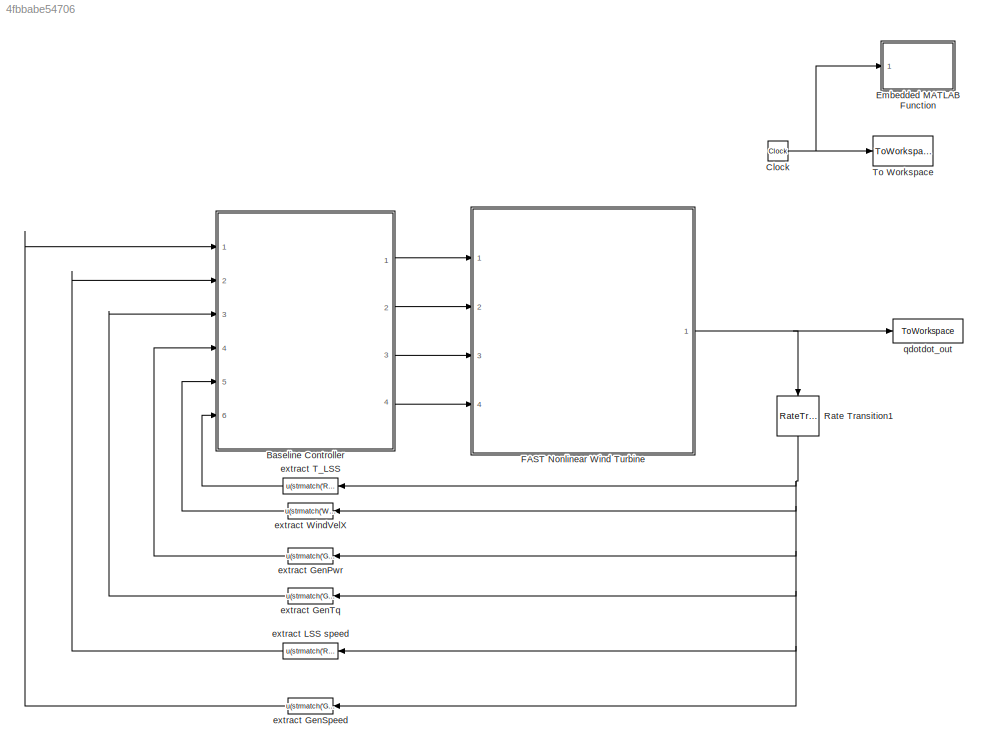
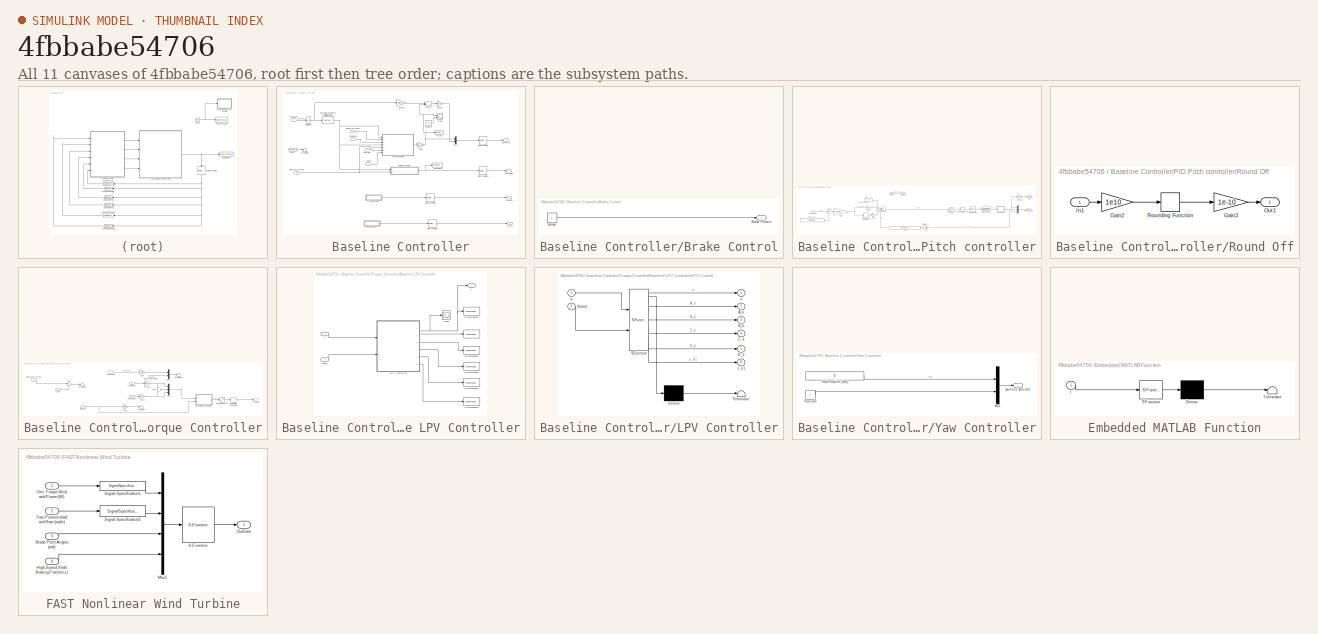
[diagram: thumbnail index - all 11 canvases of the model, root first then tree order]
MODEL slx_4fbbabe54706
KIND model
CONFIG AbsTol = auto
CONFIG EnableMultiTasking = on
CONFIG FixedStep = .0125
CONFIG MaxStep = auto
CONFIG MinStep = auto
CONFIG RelTol = 1e-3
CONFIG SampleTimeConstraint = Unconstrained
CONFIG Solver = ode4
CONFIG SolverName = ode4
CONFIG StartTime = 0.0
CONFIG StopTime = TMax
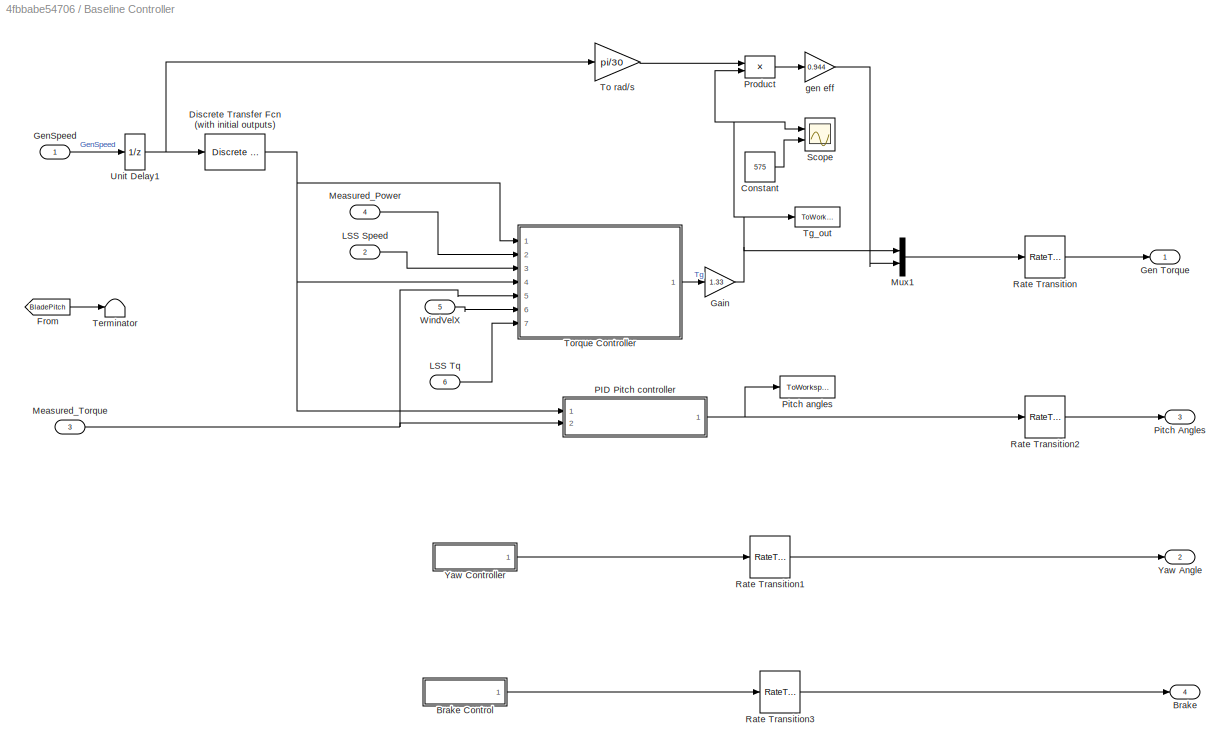
BLOCK [SubSystem] Baseline Controller
  Ports = [6, 4]
  RequestExecContextInheritance = off
BLOCK [Outport] Baseline Controller/Brake
  IconDisplay = Port number
  Port = 4
BLOCK [SubSystem] Baseline Controller/Brake Control
  Ports = [0, 1]
  RequestExecContextInheritance = off
BLOCK [Constant] Baseline Controller/Brake Control/Brake
  SampleTime = -1
  Value = 0
BLOCK [Outport] Baseline Controller/Brake Control/Brake Percent
  IconDisplay = Port number
BLOCK [Constant] Baseline Controller/Constant
  Value = 575
BLOCK [Reference] Baseline Controller/Discrete Transfer Fcn (with initial outputs)  REF=simulink_extras/Additional
Discrete/Discrete
Transfer Fcn
(with initial outputs)
  Ports = [1, 1]
  SourceBlock = simulink_extras/Additional\nDiscrete/Discrete\nTransfer Fcn\n(with initial outputs)
  SourceProductBaseCode = SL
  SourceProductName = Simulink
  SourceType = Discrete Transfer Function with Initial Outputs
BLOCK [From] Baseline Controller/From
  GotoTag = BladePitch
  TagVisibility = global
BLOCK [Gain] Baseline Controller/Gain
  Gain = 1.33
  OutDataTypeStr = Inherit: Inherit via internal rule
  ParamDataTypeStr = Inherit: Inherit via internal rule
  SaturateOnIntegerOverflow = off
BLOCK [Outport] Baseline Controller/Gen Torque
  IconDisplay = Port number
BLOCK [Inport] Baseline Controller/GenSpeed
  IconDisplay = Port number
BLOCK [Inport] Baseline Controller/LSS Speed
  IconDisplay = Port number
  Port = 2
BLOCK [Inport] Baseline Controller/LSS Tq
  IconDisplay = Port number
  Port = 6
BLOCK [Inport] Baseline Controller/Measured_Power
  IconDisplay = Port number
  Port = 4
BLOCK [Inport] Baseline Controller/Measured_Torque
  IconDisplay = Port number
  Port = 3
BLOCK [Mux] Baseline Controller/Mux1
  DisplayOption = bar
  Inputs = 2
  Ports = [2, 1]
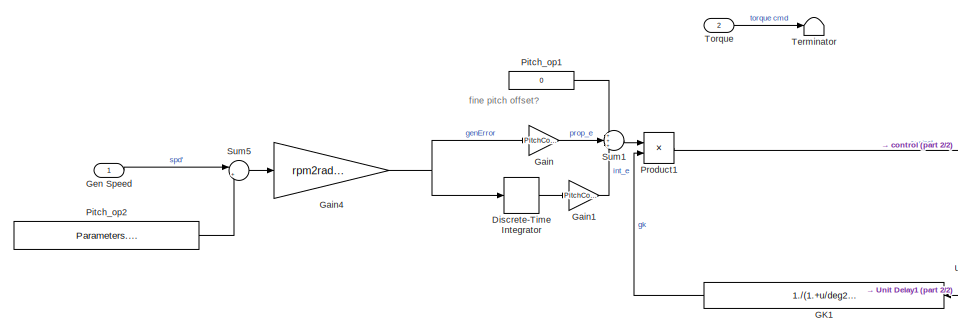
[diagram: Baseline Controller/PID Pitch controller - part 1/2, left side, full height]
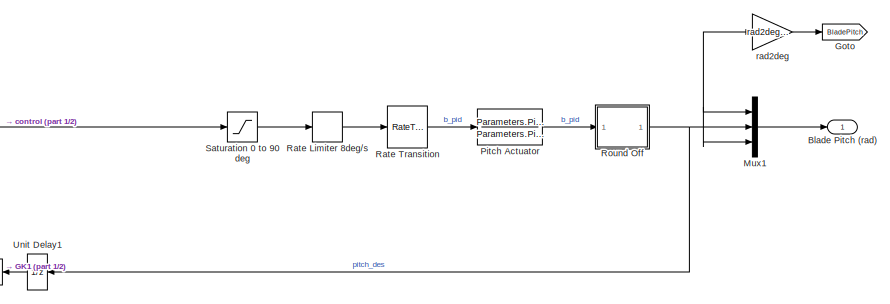
[diagram: Baseline Controller/PID Pitch controller - part 2/2, right side, full height]
BLOCK [SubSystem] Baseline Controller/PID Pitch controller
  MinAlgLoopOccurrences = on
  Ports = [2, 1]
  RequestExecContextInheritance = off
BLOCK [Outport] Baseline Controller/PID Pitch controller/Blade Pitch (rad)
  IconDisplay = Port number
BLOCK [DiscreteIntegrator] Baseline Controller/PID Pitch controller/Discrete-Time Integrator
  ICPrevOutput = DiscIntNeverNeededParam
  ICPrevScaledInput = DiscIntNeverNeededParam
  InitialCondition = deg2rad(Parameters.Turbine.fine_pitch)/(PitchControlParams.Ki_0)/(1./(1.+deg2rad(Parameters.Turbine.fine_pitch)/PitchControlParams.theta_k))
  IntegratorMethod = Integration: Backward Euler
  LimitOutput = on
  LowerSaturationLimit = deg2rad(Parameters.Turbine.fine_pitch)/(PitchControlParams.Ki_0)/(1./(1.+deg2rad(Parameters.Turbine.fine_pitch)/PitchControlParams.theta_k))
  Ports = [1, 1]
  SampleTime = Control.DT
  UpperSaturationLimit = 5*1.570796/(PitchControlParams.Ki_0)/(1./(1.+1.570796/PitchControlParams.theta_k))
  gainval = 1
BLOCK [Fcn] Baseline Controller/PID Pitch controller/GK1
  Expr = 1./(1.+u/deg2rad(PitchControlParams.theta_k))
BLOCK [Gain] Baseline Controller/PID Pitch controller/Gain
  Gain = PitchControlParams.Kp_0
  OutDataTypeStr = Inherit: Inherit via internal rule
  ParamDataTypeStr = Inherit: Inherit via internal rule
  SaturateOnIntegerOverflow = off
BLOCK [Gain] Baseline Controller/PID Pitch controller/Gain1
  Gain = PitchControlParams.Ki_0
  OutDataTypeStr = Inherit: Inherit via internal rule
  ParamDataTypeStr = Inherit: Inherit via internal rule
  SaturateOnIntegerOverflow = off
BLOCK [Gain] Baseline Controller/PID Pitch controller/Gain4
  Gain = rpm2radps(1)
  OutDataTypeStr = Inherit: Inherit via internal rule
  ParamDataTypeStr = Inherit: Inherit via internal rule
  SaturateOnIntegerOverflow = off
BLOCK [Inport] Baseline Controller/PID Pitch controller/Gen Speed
  IconDisplay = Port number
BLOCK [Goto] Baseline Controller/PID Pitch controller/Goto
  GotoTag = BladePitch
  TagVisibility = global
BLOCK [Mux] Baseline Controller/PID Pitch controller/Mux1
  DisplayOption = bar
  Inputs = 3
  Ports = [3, 1]
BLOCK [TransferFcn] Baseline Controller/PID Pitch controller/Pitch Actuator
  Denominator = Parameters.PitchActuator.TF_den
  Numerator = Parameters.PitchActuator.TF_num
BLOCK [Constant] Baseline Controller/PID Pitch controller/Pitch_op1
  SampleTime = Control.DT
  Value = 0
BLOCK [Constant] Baseline Controller/PID Pitch controller/Pitch_op2
  SampleTime = Control.DT
  Value = Parameters.Turbine.wg_rated
BLOCK [Product] Baseline Controller/PID Pitch controller/Product1
  InputSameDT = off
  OutDataTypeStr = Inherit: Inherit via internal rule
  Ports = [2, 1]
  SaturateOnIntegerOverflow = off
BLOCK [RateLimiter] Baseline Controller/PID Pitch controller/Rate Limiter 8deg//s
  FallingSlewLimit = -8*pi/180
  InitialCondition = deg2rad(0)
  RisingSlewLimit = 8*pi/180
  SampleTimeMode = inherited
BLOCK [RateTransition] Baseline Controller/PID Pitch controller/Rate Transition
  Commented = through
BLOCK [SubSystem] Baseline Controller/PID Pitch controller/Round Off
  Ports = [1, 1]
  RequestExecContextInheritance = off
BLOCK [Gain] Baseline Controller/PID Pitch controller/Round Off/Gain2
  Gain = 1e10
  OutDataTypeStr = Inherit: Inherit via internal rule
  ParamDataTypeStr = Inherit: Inherit via internal rule
  SaturateOnIntegerOverflow = off
BLOCK [Gain] Baseline Controller/PID Pitch controller/Round Off/Gain3
  Gain = 1e-10
  OutDataTypeStr = Inherit: Inherit via internal rule
  ParamDataTypeStr = Inherit: Inherit via internal rule
  SaturateOnIntegerOverflow = off
BLOCK [Inport] Baseline Controller/PID Pitch controller/Round Off/In1
  IconDisplay = Port number
BLOCK [Outport] Baseline Controller/PID Pitch controller/Round Off/Out1
  IconDisplay = Port number
BLOCK [Rounding] Baseline Controller/PID Pitch controller/Round Off/Rounding Function
  Operator = round
BLOCK [Saturate] Baseline Controller/PID Pitch controller/Saturation 0 to 90 deg
  InputPortMap = u0
  LowerLimit = deg2rad(Parameters.Turbine.fine_pitch)
  Ports = [1, 1]
  UpperLimit = 90*pi/180
BLOCK [Sum] Baseline Controller/PID Pitch controller/Sum1
  IconShape = round
  InputSameDT = off
  Inputs = +++
  OutDataTypeStr = Inherit: Inherit via internal rule
  Ports = [3, 1]
  SaturateOnIntegerOverflow = off
BLOCK [Sum] Baseline Controller/PID Pitch controller/Sum5
  IconShape = round
  Inputs = |+-
  Ports = [2, 1]
BLOCK [Terminator] Baseline Controller/PID Pitch controller/Terminator
BLOCK [Inport] Baseline Controller/PID Pitch controller/Torque
  IconDisplay = Port number
  Port = 2
BLOCK [UnitDelay] Baseline Controller/PID Pitch controller/Unit Delay1
  InitialCondition = Parameters.Turbine.IC.Wg
  SampleTime = Control.DT
BLOCK [Gain] Baseline Controller/PID Pitch controller/rad2deg
  Gain = rad2deg(1)
  OutDataTypeStr = Inherit: Inherit via internal rule
  ParamDataTypeStr = Inherit: Inherit via internal rule
  SaturateOnIntegerOverflow = off
BLOCK [Outport] Baseline Controller/Pitch Angles
  IconDisplay = Port number
  Port = 3
BLOCK [ToWorkspace] Baseline Controller/Pitch angles 
  MaxDataPoints = inf
  Ports = [1]
  SampleTime = FA.DT
  VariableName = theta_out
BLOCK [Product] Baseline Controller/Product
  InputSameDT = off
  OutDataTypeStr = Inherit: Inherit via internal rule
  Ports = [2, 1]
  SaturateOnIntegerOverflow = off
BLOCK [RateTransition] Baseline Controller/Rate Transition
  InitialCondition = Parameters.Turbine.IC.Tg
BLOCK [RateTransition] Baseline Controller/Rate Transition1
BLOCK [RateTransition] Baseline Controller/Rate Transition2
  InitialCondition = Parameters.Turbine.IC.Bp
BLOCK [RateTransition] Baseline Controller/Rate Transition3
BLOCK [Scope] Baseline Controller/Scope
  Floating = off
  NumInputPorts = 2
  Ports = [2]
  ScopeSpecificationString = Simulink.scopes.TimeScopeBlockCfg('CurrentConfiguration', extmgr.ConfigurationSet(extmgr.Configuration('Core','General UI',true),extmgr.Configuration('Core','Source UI',true),extmgr.Configuration('Sources','WiredSimulink',true,'DataLoggingVariableName','ScopeData1'),extmgr.Configuration('Visuals','Time Domain',true,'SerializedDisplays',{struct('MinYLimReal','-71.875','MaxYLimReal','646.875','YLabe...<+1411ch>
BLOCK [Terminator] Baseline Controller/Terminator
BLOCK [ToWorkspace] Baseline Controller/Tg_out
  MaxDataPoints = Inf
  Ports = [1]
  VariableName = Out_Tg
BLOCK [Gain] Baseline Controller/To rad//s
  Gain = pi/30
  OutDataTypeStr = Inherit: Inherit via internal rule
  ParamDataTypeStr = Inherit: Inherit via internal rule
  SaturateOnIntegerOverflow = off
BLOCK [SubSystem] Baseline Controller/Torque Controller
  Ports = [7, 1]
  RequestExecContextInheritance = off
BLOCK [SubSystem] Baseline Controller/Torque Controller/Baseline LPV Controller
  MinAlgLoopOccurrences = on
  Ports = [2, 1]
  RequestExecContextInheritance = off
  TreatAsAtomicUnit = on
  TreatAsGroupedWhenPropagatingVariantConditions = off
BLOCK [ToWorkspace] Baseline Controller/Torque Controller/Baseline LPV Controller/ 
  Decimation = 3
  FixptAsFi = on
  MaxDataPoints = inf
  Ports = [1]
  SampleTime = -1
  Save2DSignal = 3-D array (concatenate along third dimension)
  SaveFormat = Structure With Time
  VariableName = A_k
BLOCK [SubSystem] Baseline Controller/Torque Controller/Baseline LPV Controller/LPV Controller
  ErrorFcn = Stateflow.Translate.translate
  MinAlgLoopOccurrences = on
  PermitHierarchicalResolution = ExplicitOnly
  Ports = [2, 6]
  RequestExecContextInheritance = off
  SFBlockType = MATLAB Function
  TreatAsAtomicUnit = on
  TreatAsGroupedWhenPropagatingVariantConditions = off
BLOCK [Demux] Baseline Controller/Torque Controller/Baseline LPV Controller/LPV Controller/ Demux 
  Outputs = 1
  Ports = [1, 1]
BLOCK [S-Function] Baseline Controller/Torque Controller/Baseline LPV Controller/LPV Controller/ SFunction 
  EnableBusSupport = on
  FunctionName = sf_sfun
  PortCounts = [2 7]
  Ports = [2, 7]
  SFcnIsStateOwnerBlock = off
  SFunctionDeploymentMode = off
  Tag = Stateflow S-Function LPV_TorqueTracker_DT_CP_LMI_II_v3 1
BLOCK [Terminator] Baseline Controller/Torque Controller/Baseline LPV Controller/LPV Controller/ Terminator 
BLOCK [Outport] Baseline Controller/Torque Controller/Baseline LPV Controller/LPV Controller/A_k
  IconDisplay = Port number
  Port = 2
BLOCK [Outport] Baseline Controller/Torque Controller/Baseline LPV Controller/LPV Controller/B_k
  IconDisplay = Port number
  Port = 3
BLOCK [Outport] Baseline Controller/Torque Controller/Baseline LPV Controller/LPV Controller/C_k
  IconDisplay = Port number
  Port = 4
BLOCK [Outport] Baseline Controller/Torque Controller/Baseline LPV Controller/LPV Controller/D_k
  IconDisplay = Port number
  Port = 5
BLOCK [Inport] Baseline Controller/Torque Controller/Baseline LPV Controller/LPV Controller/theta1
  IconDisplay = Port number
  Port = 2
BLOCK [Outport] Baseline Controller/Torque Controller/Baseline LPV Controller/LPV Controller/u
  IconDisplay = Port number
BLOCK [Outport] Baseline Controller/Torque Controller/Baseline LPV Controller/LPV Controller/x_k1
  IconDisplay = Port number
  Port = 6
BLOCK [Inport] Baseline Controller/Torque Controller/Baseline LPV Controller/LPV Controller/y
  IconDisplay = Port number
BLOCK [Scope] Baseline Controller/Torque Controller/Baseline LPV Controller/Scope
  Floating = off
  NumInputPorts = 1
  Ports = [1]
  ScopeSpecificationString = Simulink.scopes.TimeScopeBlockCfg('CurrentConfiguration', extmgr.ConfigurationSet(extmgr.Configuration('Core','General UI',true),extmgr.Configuration('Core','Source UI',true),extmgr.Configuration('Sources','WiredSimulink',true,'DataLoggingVariableName','ScopeData1'),extmgr.Configuration('Visuals','Time Domain',true,'SerializedDisplays',{struct('MinYLimReal','-17.89709','MaxYLimReal','103.23101','Y...<+1424ch>
BLOCK [ToWorkspace] Baseline Controller/Torque Controller/Baseline LPV Controller/To Workspace1
  Decimation = 3
  FixptAsFi = on
  MaxDataPoints = inf
  Ports = [1]
  SampleTime = -1
  Save2DSignal = 3-D array (concatenate along third dimension)
  SaveFormat = Structure With Time
  VariableName = B_k
BLOCK [ToWorkspace] Baseline Controller/Torque Controller/Baseline LPV Controller/To Workspace2
  Decimation = 3
  FixptAsFi = on
  MaxDataPoints = inf
  Ports = [1]
  SampleTime = -1
  Save2DSignal = 3-D array (concatenate along third dimension)
  SaveFormat = Structure With Time
  VariableName = C_k
BLOCK [ToWorkspace] Baseline Controller/Torque Controller/Baseline LPV Controller/To Workspace3
  Decimation = 3
  FixptAsFi = on
  MaxDataPoints = inf
  Ports = [1]
  SampleTime = -1
  Save2DSignal = 3-D array (concatenate along third dimension)
  SaveFormat = Structure With Time
  VariableName = D_k
BLOCK [ToWorkspace] Baseline Controller/Torque Controller/Baseline LPV Controller/To Workspace4
  Decimation = 3
  FixptAsFi = on
  MaxDataPoints = inf
  Ports = [1]
  SampleTime = -1
  Save2DSignal = 3-D array (concatenate along third dimension)
  SaveFormat = Structure With Time
  VariableName = x_k1
BLOCK [ToWorkspace] Baseline Controller/Torque Controller/Baseline LPV Controller/To Workspace5
  Decimation = 3
  FixptAsFi = on
  MaxDataPoints = inf
  Ports = [1]
  SampleTime = -1
  Save2DSignal = 3-D array (concatenate along third dimension)
  SaveFormat = Structure With Time
  VariableName = u
BLOCK [Inport] Baseline Controller/Torque Controller/Baseline LPV Controller/theta
  IconDisplay = Port number
  Port = 2
BLOCK [Outport] Baseline Controller/Torque Controller/Baseline LPV Controller/u
  IconDisplay = Port number
BLOCK [Inport] Baseline Controller/Torque Controller/Baseline LPV Controller/y
  IconDisplay = Port number
BLOCK [Gain] Baseline Controller/Torque Controller/Gain
  Gain = 1/Parameters.Turbine.G
  OutDataTypeStr = Inherit: Inherit via internal rule
  ParamDataTypeStr = Inherit: Inherit via internal rule
  SaturateOnIntegerOverflow = off
BLOCK [Inport] Baseline Controller/Torque Controller/HSS Speed
  IconDisplay = Port number
  Port = 4
BLOCK [Inport] Baseline Controller/Torque Controller/HSSspeed
  IconDisplay = Port number
BLOCK [Inport] Baseline Controller/Torque Controller/LSS Speed
  IconDisplay = Port number
  Port = 3
BLOCK [Inport] Baseline Controller/Torque Controller/LSS Tq
  IconDisplay = Port number
  Port = 7
BLOCK [Inport] Baseline Controller/Torque Controller/Measured_Power
  IconDisplay = Port number
  Port = 2
BLOCK [Inport] Baseline Controller/Torque Controller/Measured_Torque
  IconDisplay = Port number
  Port = 5
BLOCK [Mux] Baseline Controller/Torque Controller/Mux
  DisplayOption = bar
  Inputs = 3
  Ports = [3, 1]
BLOCK [Mux] Baseline Controller/Torque Controller/Mux2
  DisplayOption = bar
  Inputs = 2
  Ports = [2, 1]
BLOCK [RateLimiter] Baseline Controller/Torque Controller/Rate Limiter 15000Nm//s1
  FallingSlewLimit = -15000
  InitialCondition = Parameters.Turbine.IC.Tg
  RisingSlewLimit = 15000
  SampleTimeMode = inherited
BLOCK [Saturate] Baseline Controller/Torque Controller/Saturate to Tg_op1
  InputPortMap = u0
  LowerLimit = 0
  Ports = [1, 1]
  UpperLimit = TorqueControlParams.T_rated
BLOCK [Sum] Baseline Controller/Torque Controller/Sum
  IconShape = round
  InputSameDT = off
  Inputs = +-
  OutDataTypeStr = Inherit: Inherit via internal rule
  Ports = [2, 1]
  SaturateOnIntegerOverflow = off
BLOCK [Sum] Baseline Controller/Torque Controller/Sum1
  IconShape = round
  InputSameDT = off
  Inputs = -+
  OutDataTypeStr = Inherit: Inherit via internal rule
  Ports = [2, 1]
  SaturateOnIntegerOverflow = off
BLOCK [Gain] Baseline Controller/Torque Controller/TSR
  Gain = Parameters.Turbine.la_max/Parameters.Turbine.R*(30/pi)*Parameters.Turbine.G
  OutDataTypeStr = Inherit: Inherit via internal rule
  ParamDataTypeStr = Inherit: Inherit via internal rule
  SaturateOnIntegerOverflow = off
BLOCK [Terminator] Baseline Controller/Torque Controller/Terminator1
BLOCK [Terminator] Baseline Controller/Torque Controller/Terminator4
BLOCK [Terminator] Baseline Controller/Torque Controller/Terminator5
BLOCK [Outport] Baseline Controller/Torque Controller/Torque
  IconDisplay = Port number
BLOCK [Inport] Baseline Controller/Torque Controller/WindVelX
  IconDisplay = Port number
  Port = 6
BLOCK [Gain] Baseline Controller/Torque Controller/radps
  Gain = pi/30
  OutDataTypeStr = Inherit: Inherit via internal rule
  ParamDataTypeStr = Inherit: Inherit via internal rule
  SaturateOnIntegerOverflow = off
BLOCK [Gain] Baseline Controller/Torque Controller/to radps
  Gain = pi/30
  OutDataTypeStr = Inherit: Inherit via internal rule
  ParamDataTypeStr = Inherit: Inherit via internal rule
  SaturateOnIntegerOverflow = off
BLOCK [UnitDelay] Baseline Controller/Unit Delay1
  InitialCondition = Parameters.Turbine.IC.Wg
  SampleTime = FA.DT
BLOCK [Inport] Baseline Controller/WindVelX
  IconDisplay = Port number
  Port = 5
BLOCK [Outport] Baseline Controller/Yaw Angle
  IconDisplay = Port number
  Port = 2
BLOCK [SubSystem] Baseline Controller/Yaw Controller
  Ports = [0, 1]
  RequestExecContextInheritance = off
BLOCK [Mux] Baseline Controller/Yaw Controller/Mux
  DisplayOption = bar
  Inputs = 2
  Ports = [2, 1]
BLOCK [Constant] Baseline Controller/Yaw Controller/Yaw Position (rad)
  SampleTime = -1
  Value = 0
BLOCK [Constant] Baseline Controller/Yaw Controller/Yaw rate
  SampleTime = -1
  Value = 0
BLOCK [Outport] Baseline Controller/Yaw Controller/yaw and yaw rate
  IconDisplay = Port number
BLOCK [Gain] Baseline Controller/gen eff
  Gain = 0.944
  OutDataTypeStr = Inherit: Inherit via internal rule
  ParamDataTypeStr = Inherit: Inherit via internal rule
  SaturateOnIntegerOverflow = off
BLOCK [Clock] Clock
BLOCK [SubSystem] Embedded MATLAB Function
  ErrorFcn = Stateflow.Translate.translate
  PermitHierarchicalResolution = ExplicitOnly
  Ports = [1]
  RequestExecContextInheritance = off
  SFBlockType = MATLAB Function
  TreatAsAtomicUnit = on
BLOCK [Demux] Embedded MATLAB Function/ Demux 
  Outputs = 1
  Ports = [1, 1]
BLOCK [S-Function] Embedded MATLAB Function/ SFunction 
  EnableBusSupport = on
  FunctionName = sf_sfun
  PortCounts = [1 1]
  Ports = [1, 1]
  SFcnIsStateOwnerBlock = off
  SFunctionDeploymentMode = off
  Tag = Stateflow S-Function LPV_TorqueTracker_DT_CP_LMI_II_v3 2
BLOCK [Terminator] Embedded MATLAB Function/ Terminator 
BLOCK [Inport] Embedded MATLAB Function/t
  IconDisplay = Port number
BLOCK [SubSystem] FAST Nonlinear Wind Turbine
  Ports = [4, 1]
  RequestExecContextInheritance = off
BLOCK [Inport] FAST Nonlinear Wind Turbine/Blade Pitch Angles (rad)
  IconDisplay = Port number
  Port = 3
BLOCK [Inport] FAST Nonlinear Wind Turbine/Gen. Torque (Nm) and Power (W)
  IconDisplay = Port number
BLOCK [Inport] FAST Nonlinear Wind Turbine/High-Speed Shaft Braking Fraction (-)
  IconDisplay = Port number
  Port = 4
BLOCK [Mux] FAST Nonlinear Wind Turbine/Mux1
  DisplayOption = bar
  Ports = [4, 1]
BLOCK [Outport] FAST Nonlinear Wind Turbine/OutData
  IconDisplay = Port number
BLOCK [S-Function] FAST Nonlinear Wind Turbine/S-Function
  EnableBusSupport = off
  FunctionName = FAST_SFunc
  Parameters = FAST_InputFileName, FA.TMax, 0
  Ports = [1, 1]
  SFcnIsStateOwnerBlock = off
  SFunctionDeploymentMode = off
BLOCK [SignalSpecification] FAST Nonlinear Wind Turbine/Signal Specification1
  Dimensions = 2
  OutDataTypeStr = double
  SignalType = real
BLOCK [SignalSpecification] FAST Nonlinear Wind Turbine/Signal Specification2
  Dimensions = 2
  OutDataTypeStr = double
  SignalType = real
BLOCK [Inport] FAST Nonlinear Wind Turbine/Yaw Position (rad) and Rate (rad//s)
  IconDisplay = Port number
  Port = 2
BLOCK [RateTransition] Rate Transition1
BLOCK [ToWorkspace] To Workspace
  MaxDataPoints = inf
  Ports = [1]
  SampleTime = FA.DT
  VariableName = Time
BLOCK [Fcn] extract GenPwr
  Expr = u(strmatch('GenPwr',OutList))
BLOCK [Fcn] extract GenSpeed
  Expr = u(strmatch('GenSpeed',OutList))
BLOCK [Fcn] extract GenTq
  Expr = u(strmatch('GenTq',OutList))
BLOCK [Fcn] extract LSS speed
  Expr = u(strmatch('RotSpeed',OutList))
BLOCK [Fcn] extract T_LSS
  Expr = u(strmatch('RotTorq',OutList))
BLOCK [Fcn] extract WindVelX
  Expr = u(strmatch('Wind1VelX',OutList))
BLOCK [ToWorkspace] qdotdot_out
  MaxDataPoints = inf
  Ports = [1]
  SampleTime = -1
  SaveFormat = Structure With Time
  VariableName = OutData
ANNOTATION Baseline Controller/PID Pitch controller: fine pitch offset?
LINE Baseline Controller/Brake Control/Brake:1 -> Baseline Controller/Brake Control/Brake Percent:1
LINE Baseline Controller/Brake Control:1 -> Baseline Controller/Rate Transition3:1
LINE Baseline Controller/Constant:1 -> Baseline Controller/Scope:2
NET Baseline Controller/Discrete Transfer Fcn (with initial outputs):1 -> Baseline Controller/PID Pitch controller:1, Baseline Controller/Torque Controller:1, Baseline Controller/Torque Controller:4
LINE Baseline Controller/From:1 -> Baseline Controller/Terminator:1
NET Baseline Controller/Gain:1 -> Baseline Controller/Mux1:1, Baseline Controller/Product:2, Baseline Controller/Scope:1, Baseline Controller/Tg_out:1
LINE Baseline Controller/GenSpeed:1 -> Baseline Controller/Unit Delay1:1
LINE Baseline Controller/LSS Speed:1 -> Baseline Controller/Torque Controller:3
LINE Baseline Controller/LSS Tq:1 -> Baseline Controller/Torque Controller:7
LINE Baseline Controller/Measured_Power:1 -> Baseline Controller/Torque Controller:2
NET Baseline Controller/Measured_Torque:1 -> Baseline Controller/PID Pitch controller:2, Baseline Controller/Torque Controller:5
LINE Baseline Controller/Mux1:1 -> Baseline Controller/Rate Transition:1
LINE Baseline Controller/PID Pitch controller/Discrete-Time Integrator:1 -> Baseline Controller/PID Pitch controller/Gain1:1
LINE Baseline Controller/PID Pitch controller/GK1:1 -> Baseline Controller/PID Pitch controller/Product1:2
LINE Baseline Controller/PID Pitch controller/Gain1:1 -> Baseline Controller/PID Pitch controller/Sum1:3
NET Baseline Controller/PID Pitch controller/Gain4:1 -> Baseline Controller/PID Pitch controller/Discrete-Time Integrator:1, Baseline Controller/PID Pitch controller/Gain:1
LINE Baseline Controller/PID Pitch controller/Gain:1 -> Baseline Controller/PID Pitch controller/Sum1:2
LINE Baseline Controller/PID Pitch controller/Gen Speed:1 -> Baseline Controller/PID Pitch controller/Sum5:1
LINE Baseline Controller/PID Pitch controller/Mux1:1 -> Baseline Controller/PID Pitch controller/Blade Pitch (rad):1
LINE Baseline Controller/PID Pitch controller/Pitch Actuator:1 -> Baseline Controller/PID Pitch controller/Round Off:1
LINE Baseline Controller/PID Pitch controller/Pitch_op1:1 -> Baseline Controller/PID Pitch controller/Sum1:1
LINE Baseline Controller/PID Pitch controller/Pitch_op2:1 -> Baseline Controller/PID Pitch controller/Sum5:2
LINE Baseline Controller/PID Pitch controller/Product1:1 -> Baseline Controller/PID Pitch controller/Saturation 0 to 90 deg:1
LINE Baseline Controller/PID Pitch controller/Rate Limiter 8deg//s:1 -> Baseline Controller/PID Pitch controller/Rate Transition:1
LINE Baseline Controller/PID Pitch controller/Rate Transition:1 -> Baseline Controller/PID Pitch controller/Pitch Actuator:1
LINE Baseline Controller/PID Pitch controller/Round Off/Gain2:1 -> Baseline Controller/PID Pitch controller/Round Off/Rounding Function:1
LINE Baseline Controller/PID Pitch controller/Round Off/Gain3:1 -> Baseline Controller/PID Pitch controller/Round Off/Out1:1
LINE Baseline Controller/PID Pitch controller/Round Off/In1:1 -> Baseline Controller/PID Pitch controller/Round Off/Gain2:1
LINE Baseline Controller/PID Pitch controller/Round Off/Rounding Function:1 -> Baseline Controller/PID Pitch controller/Round Off/Gain3:1
NET Baseline Controller/PID Pitch controller/Round Off:1 -> Baseline Controller/PID Pitch controller/Mux1:1, Baseline Controller/PID Pitch controller/Mux1:2, Baseline Controller/PID Pitch controller/Mux1:3, Baseline Controller/PID Pitch controller/Unit Delay1:1, Baseline Controller/PID Pitch controller/rad2deg:1
LINE Baseline Controller/PID Pitch controller/Saturation 0 to 90 deg:1 -> Baseline Controller/PID Pitch controller/Rate Limiter 8deg//s:1
LINE Baseline Controller/PID Pitch controller/Sum1:1 -> Baseline Controller/PID Pitch controller/Product1:1
LINE Baseline Controller/PID Pitch controller/Sum5:1 -> Baseline Controller/PID Pitch controller/Gain4:1
LINE Baseline Controller/PID Pitch controller/Torque:1 -> Baseline Controller/PID Pitch controller/Terminator:1
LINE Baseline Controller/PID Pitch controller/Unit Delay1:1 -> Baseline Controller/PID Pitch controller/GK1:1
LINE Baseline Controller/PID Pitch controller/rad2deg:1 -> Baseline Controller/PID Pitch controller/Goto:1
NET Baseline Controller/PID Pitch controller:1 -> Baseline Controller/Pitch angles :1, Baseline Controller/Rate Transition2:1
LINE Baseline Controller/Product:1 -> Baseline Controller/gen eff:1
LINE Baseline Controller/Rate Transition1:1 -> Baseline Controller/Yaw Angle:1
LINE Baseline Controller/Rate Transition2:1 -> Baseline Controller/Pitch Angles:1
LINE Baseline Controller/Rate Transition3:1 -> Baseline Controller/Brake:1
LINE Baseline Controller/Rate Transition:1 -> Baseline Controller/Gen Torque:1
LINE Baseline Controller/To rad//s:1 -> Baseline Controller/Product:1
NET Baseline Controller/Torque Controller/Baseline LPV Controller/LPV Controller:1 -> Baseline Controller/Torque Controller/Baseline LPV Controller/Scope:1, Baseline Controller/Torque Controller/Baseline LPV Controller/To Workspace5:1, Baseline Controller/Torque Controller/Baseline LPV Controller/u:1
LINE Baseline Controller/Torque Controller/Baseline LPV Controller/LPV Controller:2 -> Baseline Controller/Torque Controller/Baseline LPV Controller/ :1
LINE Baseline Controller/Torque Controller/Baseline LPV Controller/LPV Controller:3 -> Baseline Controller/Torque Controller/Baseline LPV Controller/To Workspace1:1
LINE Baseline Controller/Torque Controller/Baseline LPV Controller/LPV Controller:4 -> Baseline Controller/Torque Controller/Baseline LPV Controller/To Workspace2:1
LINE Baseline Controller/Torque Controller/Baseline LPV Controller/LPV Controller:5 -> Baseline Controller/Torque Controller/Baseline LPV Controller/To Workspace3:1
LINE Baseline Controller/Torque Controller/Baseline LPV Controller/LPV Controller:6 -> Baseline Controller/Torque Controller/Baseline LPV Controller/To Workspace4:1
LINE Baseline Controller/Torque Controller/Baseline LPV Controller/theta:1 -> Baseline Controller/Torque Controller/Baseline LPV Controller/LPV Controller:2
LINE Baseline Controller/Torque Controller/Baseline LPV Controller/y:1 -> Baseline Controller/Torque Controller/Baseline LPV Controller/LPV Controller:1
LINE Baseline Controller/Torque Controller/Baseline LPV Controller:1 -> Baseline Controller/Torque Controller/Saturate to Tg_op1:1
LINE Baseline Controller/Torque Controller/Gain:1 -> Baseline Controller/Torque Controller/Mux2:1
LINE Baseline Controller/Torque Controller/HSS Speed:1 -> Baseline Controller/Torque Controller/radps:1
LINE Baseline Controller/Torque Controller/HSSspeed:1 -> Baseline Controller/Torque Controller/Gain:1
LINE Baseline Controller/Torque Controller/LSS Speed:1 -> Baseline Controller/Torque Controller/to radps:1
LINE Baseline Controller/Torque Controller/LSS Tq:1 -> Baseline Controller/Torque Controller/Sum:2
LINE Baseline Controller/Torque Controller/Measured_Power:1 -> Baseline Controller/Torque Controller/Mux2:2
LINE Baseline Controller/Torque Controller/Measured_Torque:1 -> Baseline Controller/Torque Controller/Sum:1
LINE Baseline Controller/Torque Controller/Mux2:1 -> Baseline Controller/Torque Controller/Terminator1:1
LINE Baseline Controller/Torque Controller/Mux:1 -> Baseline Controller/Torque Controller/Baseline LPV Controller:1
LINE Baseline Controller/Torque Controller/Rate Limiter 15000Nm//s1:1 -> Baseline Controller/Torque Controller/Torque:1
LINE Baseline Controller/Torque Controller/Saturate to Tg_op1:1 -> Baseline Controller/Torque Controller/Rate Limiter 15000Nm//s1:1
LINE Baseline Controller/Torque Controller/Sum1:1 -> Baseline Controller/Torque Controller/Mux:2
LINE Baseline Controller/Torque Controller/Sum:1 -> Baseline Controller/Torque Controller/Terminator5:1
LINE Baseline Controller/Torque Controller/TSR:1 -> Baseline Controller/Torque Controller/Terminator4:1
NET Baseline Controller/Torque Controller/WindVelX:1 -> Baseline Controller/Torque Controller/Baseline LPV Controller:2, Baseline Controller/Torque Controller/TSR:1
NET Baseline Controller/Torque Controller/radps:1 -> Baseline Controller/Torque Controller/Mux:3, Baseline Controller/Torque Controller/Sum1:2
NET Baseline Controller/Torque Controller/to radps:1 -> Baseline Controller/Torque Controller/Mux:1, Baseline Controller/Torque Controller/Sum1:1
LINE Baseline Controller/Torque Controller:1 -> Baseline Controller/Gain:1
NET Baseline Controller/Unit Delay1:1 -> Baseline Controller/Discrete Transfer Fcn (with initial outputs):1, Baseline Controller/To rad//s:1
LINE Baseline Controller/WindVelX:1 -> Baseline Controller/Torque Controller:6
LINE Baseline Controller/Yaw Controller/Mux:1 -> Baseline Controller/Yaw Controller/yaw and yaw rate:1
LINE Baseline Controller/Yaw Controller/Yaw Position (rad):1 -> Baseline Controller/Yaw Controller/Mux:1
LINE Baseline Controller/Yaw Controller/Yaw rate:1 -> Baseline Controller/Yaw Controller/Mux:2
LINE Baseline Controller/Yaw Controller:1 -> Baseline Controller/Rate Transition1:1
LINE Baseline Controller/gen eff:1 -> Baseline Controller/Mux1:2
LINE Baseline Controller:1 -> FAST Nonlinear Wind Turbine:1
LINE Baseline Controller:2 -> FAST Nonlinear Wind Turbine:2
LINE Baseline Controller:3 -> FAST Nonlinear Wind Turbine:3
LINE Baseline Controller:4 -> FAST Nonlinear Wind Turbine:4
NET Clock:1 -> Embedded MATLAB Function:1, To Workspace:1
LINE FAST Nonlinear Wind Turbine/Blade Pitch Angles (rad):1 -> FAST Nonlinear Wind Turbine/Mux1:3
LINE FAST Nonlinear Wind Turbine/Gen. Torque (Nm) and Power (W):1 -> FAST Nonlinear Wind Turbine/Signal Specification1:1
LINE FAST Nonlinear Wind Turbine/High-Speed Shaft Braking Fraction (-):1 -> FAST Nonlinear Wind Turbine/Mux1:4
LINE FAST Nonlinear Wind Turbine/Mux1:1 -> FAST Nonlinear Wind Turbine/S-Function:1
LINE FAST Nonlinear Wind Turbine/S-Function:1 -> FAST Nonlinear Wind Turbine/OutData:1
LINE FAST Nonlinear Wind Turbine/Signal Specification1:1 -> FAST Nonlinear Wind Turbine/Mux1:1
LINE FAST Nonlinear Wind Turbine/Signal Specification2:1 -> FAST Nonlinear Wind Turbine/Mux1:2
LINE FAST Nonlinear Wind Turbine/Yaw Position (rad) and Rate (rad//s):1 -> FAST Nonlinear Wind Turbine/Signal Specification2:1
NET FAST Nonlinear Wind Turbine:1 -> Rate Transition1:1, qdotdot_out:1
NET Rate Transition1:1 -> extract GenPwr:1, extract GenSpeed:1, extract GenTq:1, extract LSS speed:1, extract T_LSS:1, extract WindVelX:1
LINE extract GenPwr:1 -> Baseline Controller:4
LINE extract GenSpeed:1 -> Baseline Controller:1
LINE extract GenTq:1 -> Baseline Controller:3
LINE extract LSS speed:1 -> Baseline Controller:2
LINE extract T_LSS:1 -> Baseline Controller:6
LINE extract WindVelX:1 -> Baseline Controller:5
note: NET lines group one-source signal fan-out (src -> all destinations, sorted); 1:1 wires keep LINE
CHART Baseline Controller/Torque Controller/Baseline LPV Controller/LPV Controller states=1 transitions=1
  STATE_LABEL 'eML_blk_kernel()'
  STATE_LABEL 'SCRIPT:\nfunction [u,  A_k, B_k, C_k, D_k, x_k1]   = LPVController(y, theta1)\npersistent x_k;\n\nif isempty(x_k)\n    x_k = zeros(3,1); \nend\n\nK_bar =[ 2.8575e-52*theta1 + 2.2697e-19,    1.4302e-68*theta1 + 1.6078e-25,    8.0867e-69*theta1 + 5.2536e-26, -2.2214e-19;\n  - 1.5363e-29*theta1 - 10180.0, - 7.6897e-46*theta1 - 0.000088866, - 4.3479e-46*theta1 - 0.000058681,     10232.0;\n    9.4742e-30*theta1 ...<+524ch>'
CHART Embedded
MATLAB Function states=1 transitions=1
  STATE_LABEL 'eML_blk_kernel()'
  STATE_LABEL 'SCRIPT:\nfunction TellTime(t)\n\nif t==0\n    Tsim=t\nelseif rem(t,50)==0\n    Tsim=t\nend'
